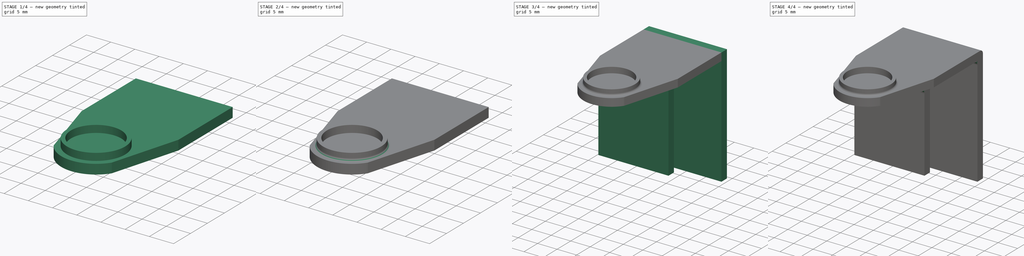
[diagram: build sequence overview — one tinted view per stage of 4, left to right]
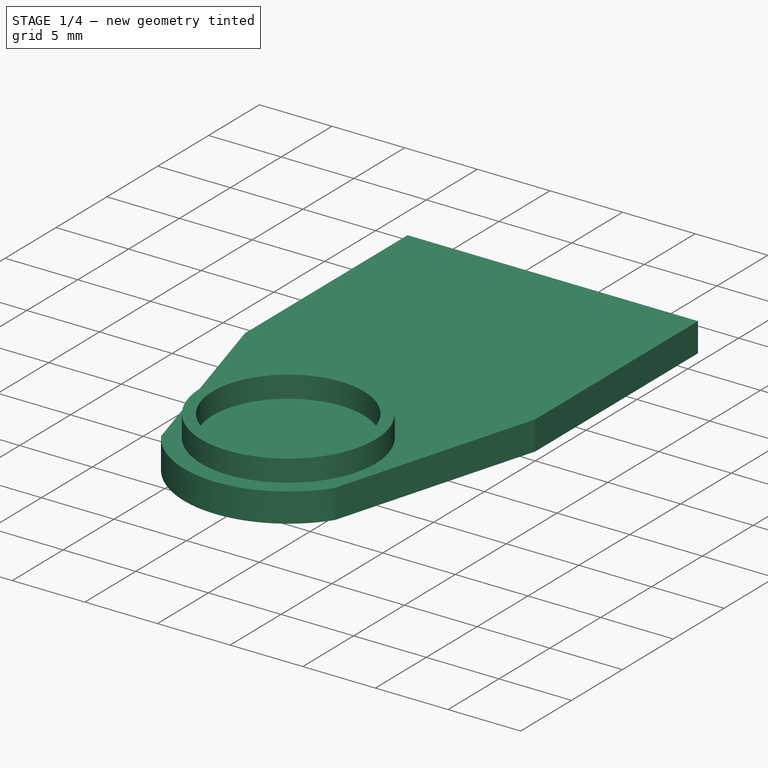
[diagram: stage 1 of 4 — iso view after this stage's code; geometry added in this stage tinted green]
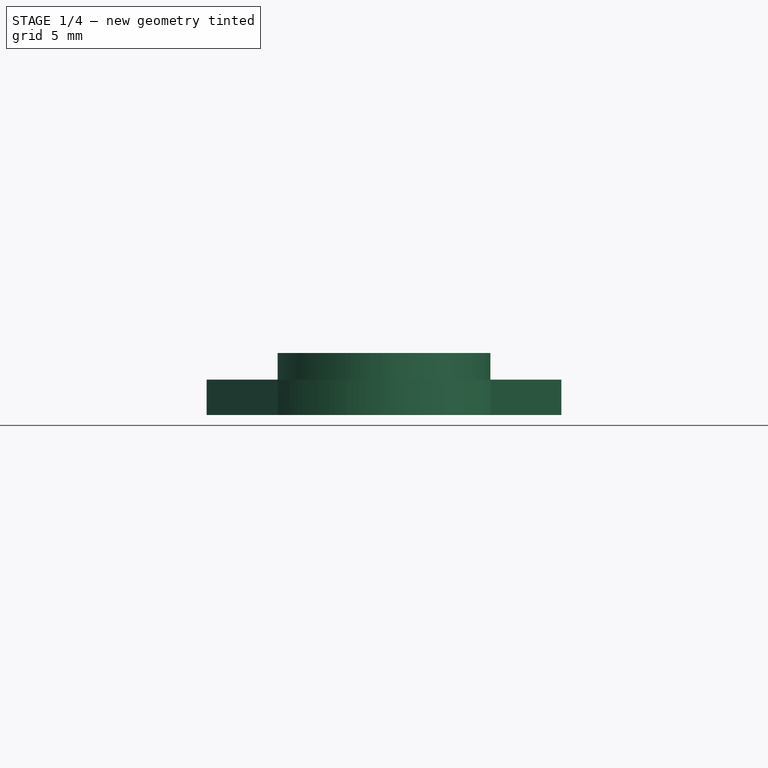
[diagram: stage 1 of 4 — front view after this stage's code; geometry added in this stage tinted green]
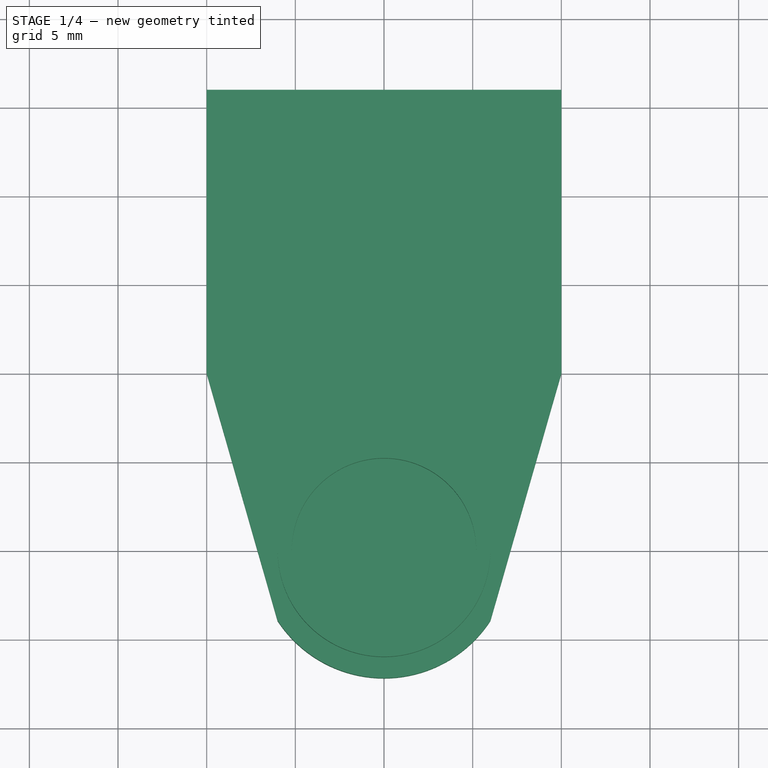
[diagram: stage 1 of 4 — top view after this stage's code; geometry added in this stage tinted green]
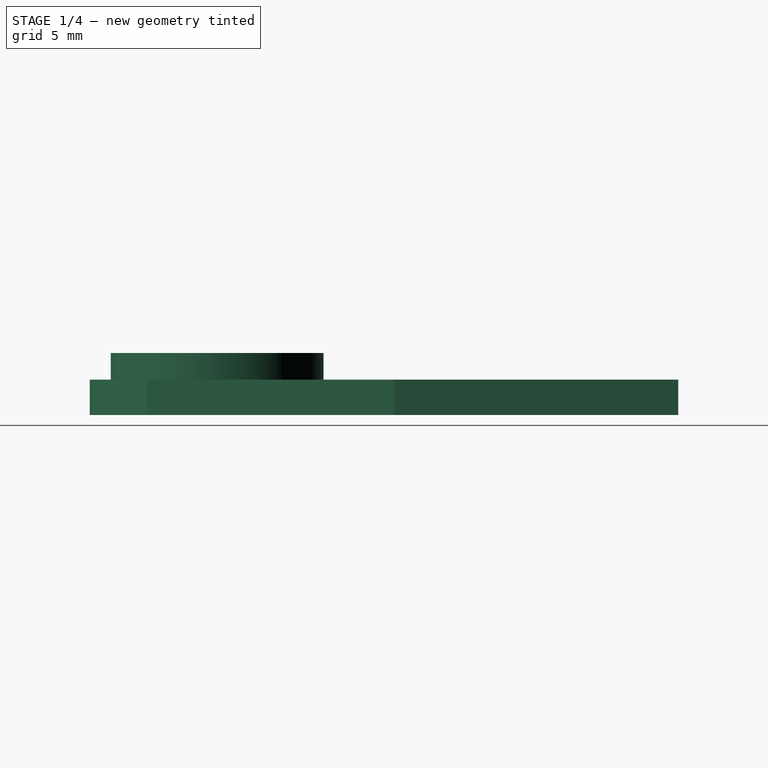
[diagram: stage 1 of 4 — right view after this stage's code; geometry added in this stage tinted green]
FCSTD DOCUMENT  (FreeCAD 0.18RUnknown)
Label: soporte_imanes_pizarra
License: All rights reserved
LicenseURL: http://en.wikipedia.org/wiki/All_rights_reserved
objects: Part::Fillet×3, Part::MultiFuse×3, Sketcher::SketchObject×2, PartDesign::Pad×2, Part::Box×2, PartDesign::Plane×1, PartDesign::Body×1
note: 16 computed .brp shape members not serialized (recipe doc carries the construction recipe); baked Part::Feature solids carry a one-line shape summary decoded from their .brp

FEATURE [Sketcher::SketchObject] Sketch
  MapMode = 5
  Support = -> [XY_Plane]
  sketch-geometry (6):
    g0: LineSegment StartX=-10 StartY=0 StartZ=0 EndX=-6 EndY=-13.9497 EndZ=0
    g1: LineSegment StartX=10 StartY=0 StartZ=0 EndX=6 EndY=-13.9497 EndZ=0
    g2: ArcOfCircle CenterX=6e-16 CenterY=-10 CenterZ=0 NormalX=0 NormalY=0 NormalZ=1 AngleXU=0 Radius=7.1833 StartAngle=3.72376 EndAngle=5.70101
    g3: LineSegment StartX=10 StartY=0 StartZ=0 EndX=10 EndY=16 EndZ=0
    g4: LineSegment StartX=10 StartY=16 StartZ=0 EndX=-10 EndY=16 EndZ=0
    g5: LineSegment StartX=-10 StartY=16 StartZ=0 EndX=-10 EndY=0 EndZ=0
  constraints (17):
    c: Symmetric(g0,g1,g-2)
    c: Equal(g0,g1)
    c: Coincident(g2,g0)
    c: DistanceX(g0,g0) = 4
    c: Coincident(g2,g1)
    c: Symmetric(g0,g1,g-2)
    c: Coincident(g3,g4)
    c: Coincident(g4,g5)
    c: Vertical(g3)
    c: DistanceX(g4,g4) = 20
    c: Coincident(g0,g5)
    c: Coincident(g1,g3)
    c: PointOnObject(g0,g-1)
    c: DistanceY(g3,g3) = 16
    c: Symmetric(g4,g3,g-2)
    c: Distance(g-1,g2) = 10
    c: Angle(g0,g5) = 2.86234
FEATURE [PartDesign::Pad] Pad
  Length = 2
  Length2 = 100
  Profile = -> Sketch
  Type = 0
FEATURE [PartDesign::Plane] DatumPlane
  Length = 24
  MapMode = 5
  Placement = pos=(0,0,2) rot=(0,0,1;0rad)
  ResizeMode = 0
  Support = -> [Pad]
  Width = 24
FEATURE [Sketcher::SketchObject] Sketch001
  MapMode = 5
  Placement = pos=(0,0,2) rot=(0,0,1;0rad)
  Support = -> [DatumPlane]
  sketch-geometry (2):
    g0: Circle CenterX=0 CenterY=-10 CenterZ=0 NormalX=0 NormalY=0 NormalZ=1 AngleXU=0 Radius=6
    g1: Circle CenterX=0 CenterY=-10 CenterZ=0 NormalX=0 NormalY=0 NormalZ=1 AngleXU=0 Radius=5.2
  constraints (5):
    c: PointOnObject(g0,g-2)
    c: Radius(g0) = 6
    c: Distance(g-1,g0) = 10
    c: Coincident(g1,g0)
    c: Radius(g1) = 5.2
FEATURE [PartDesign::Pad] Pad001
  BaseFeature = -> Pad
  Length = 1.5
  Length2 = 100
  Profile = -> Sketch001
  Type = 0
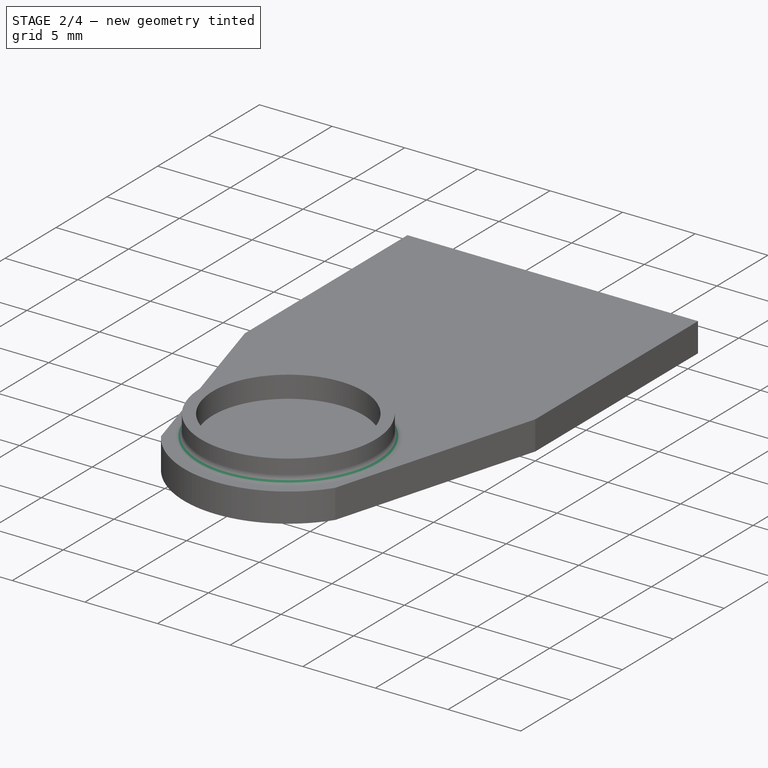
[diagram: stage 2 of 4 — iso view after this stage's code; geometry added in this stage tinted green]
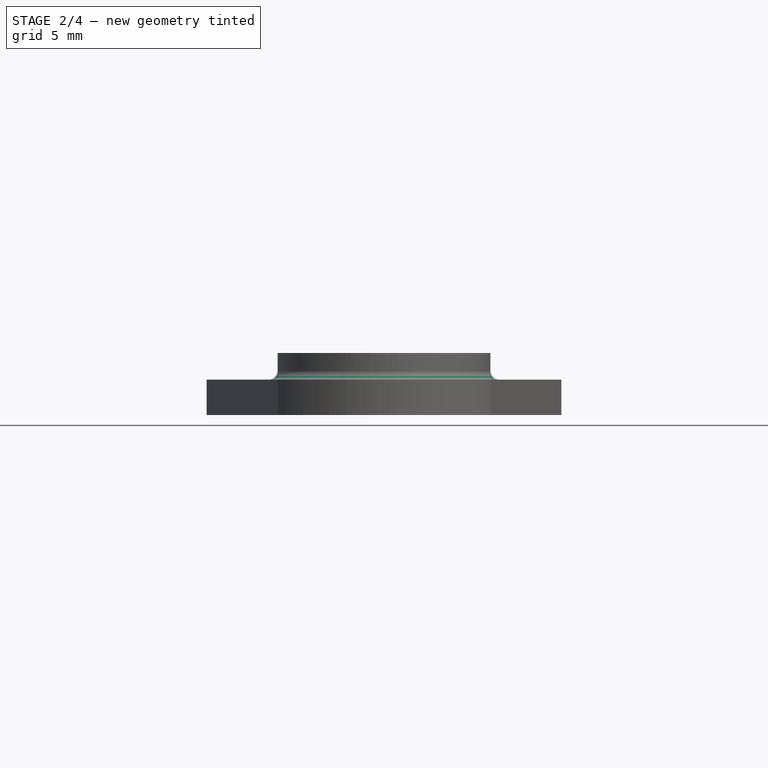
[diagram: stage 2 of 4 — front view after this stage's code; geometry added in this stage tinted green]
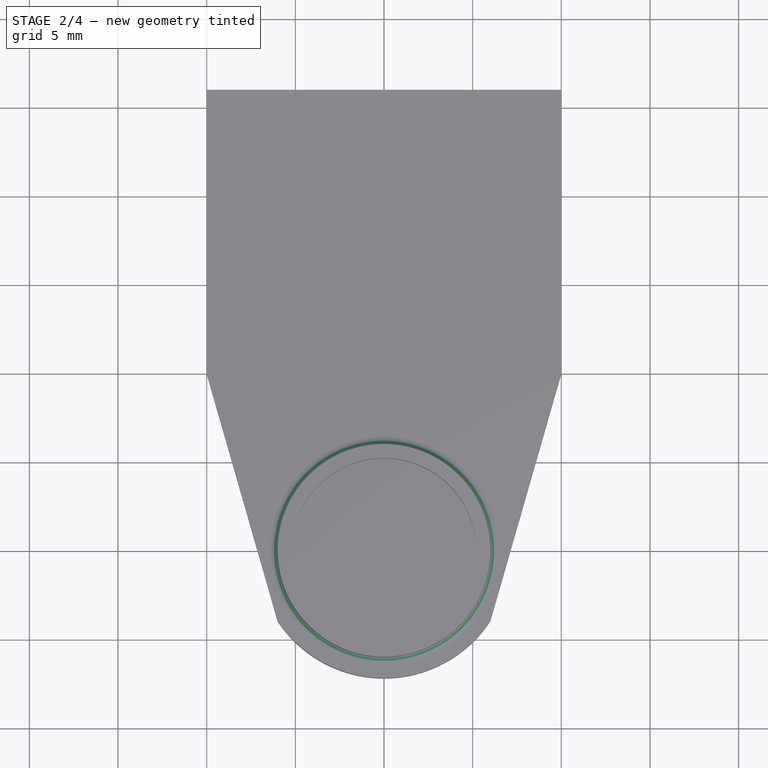
[diagram: stage 2 of 4 — top view after this stage's code; geometry added in this stage tinted green]
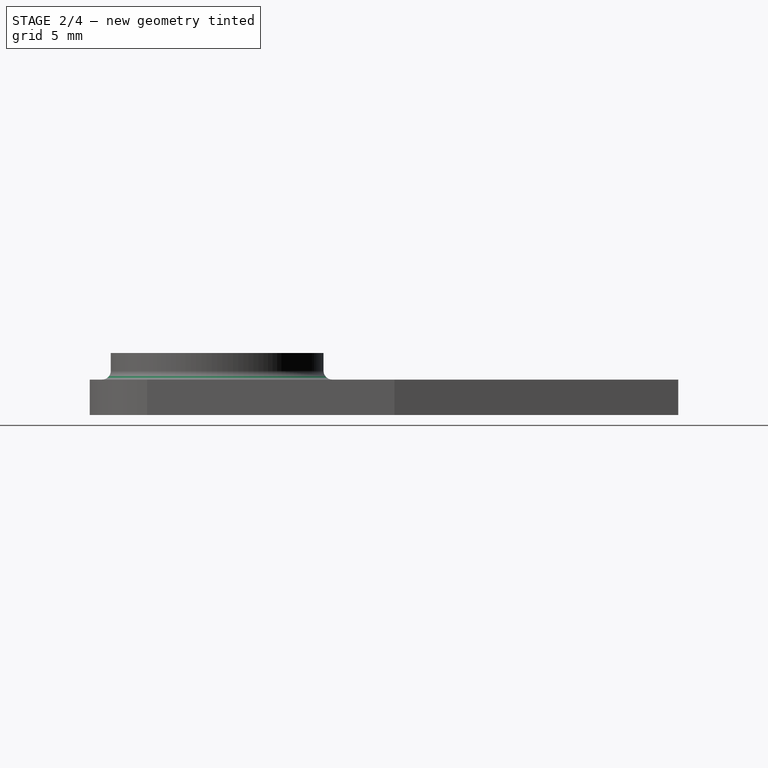
[diagram: stage 2 of 4 — right view after this stage's code; geometry added in this stage tinted green]
FEATURE [Part::Fillet] Fillet
  Base = -> Pad001
  Edges = 1 edges r=0.5: [Edge17]
FEATURE [Part::Fillet] Fillet001
  Base = -> Pad001
  Edges = 1 edges r=0.5: [Edge21]
FEATURE [Part::MultiFuse] Fusion
  Shapes = -> [Fillet,Fillet001]
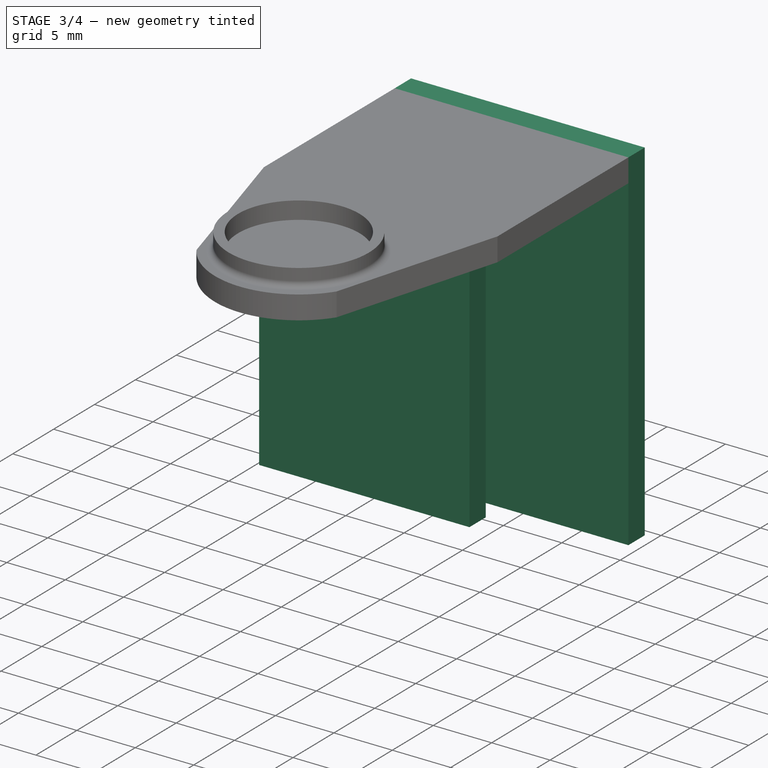
[diagram: stage 3 of 4 — iso view after this stage's code; geometry added in this stage tinted green]
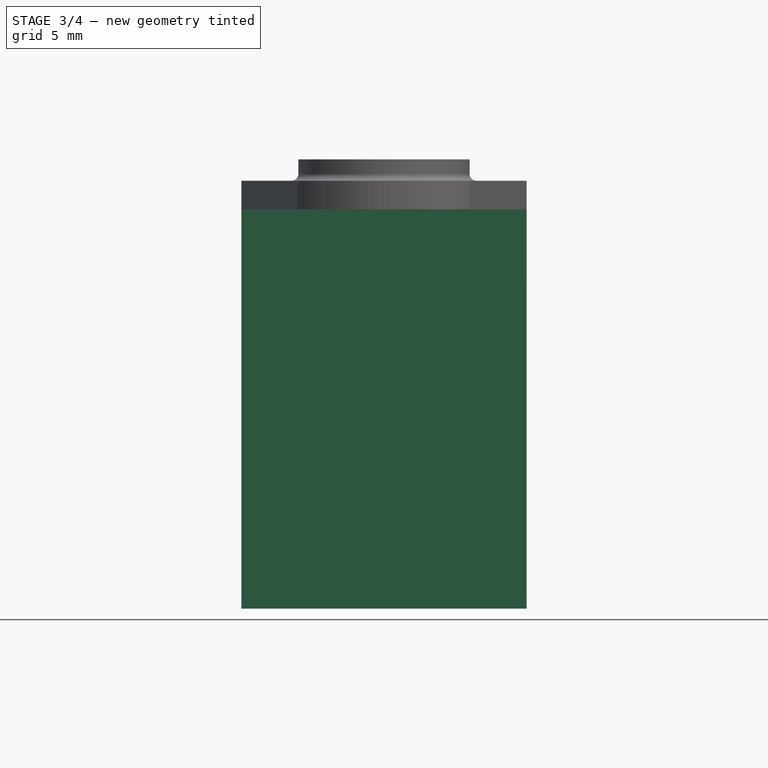
[diagram: stage 3 of 4 — front view after this stage's code; geometry added in this stage tinted green]
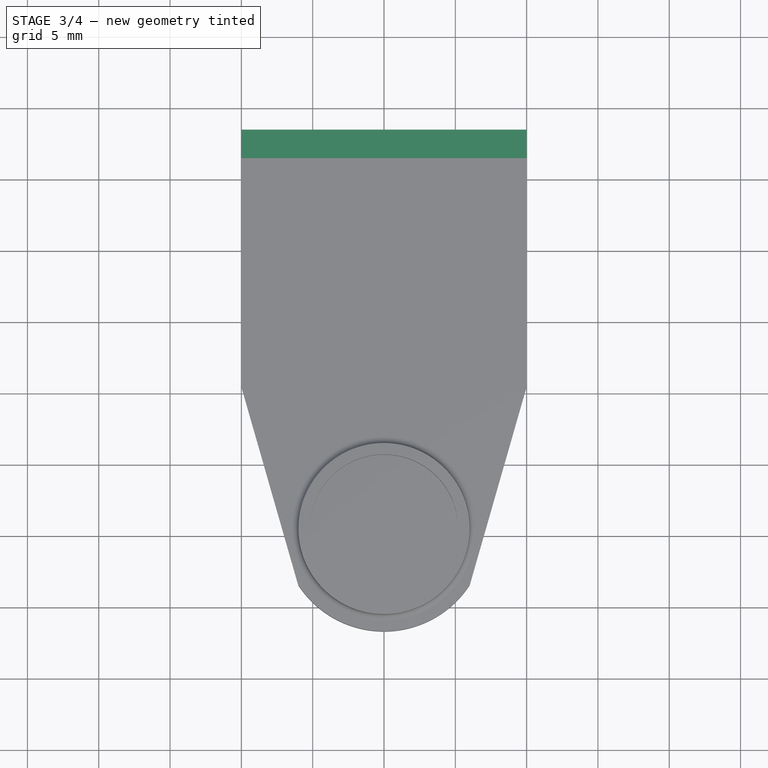
[diagram: stage 3 of 4 — top view after this stage's code; geometry added in this stage tinted green]
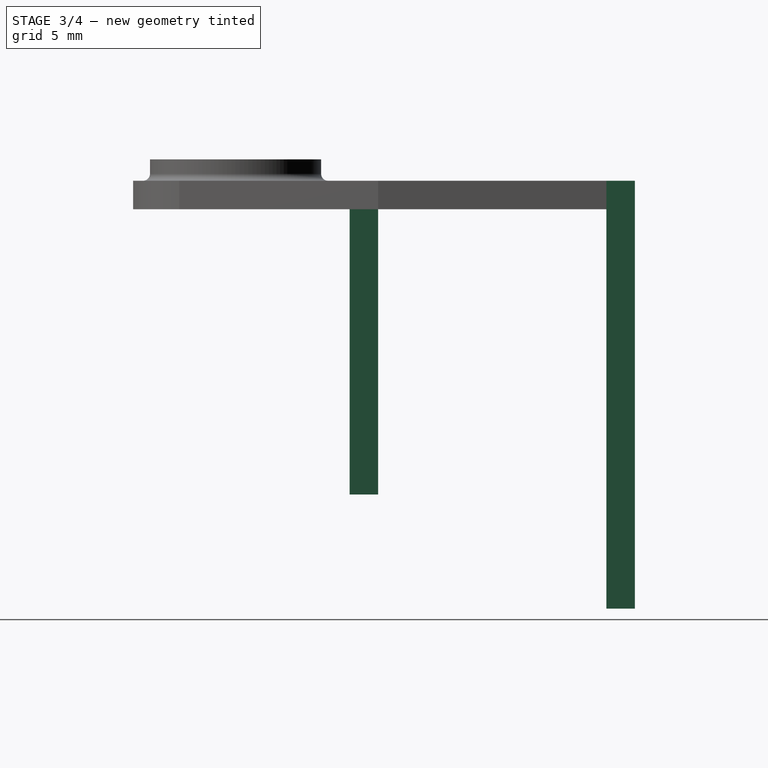
[diagram: stage 3 of 4 — right view after this stage's code; geometry added in this stage tinted green]
FEATURE [PartDesign::Body] Body
  Group = -> [Sketch,Pad,DatumPlane,Sketch001,Pad001]
  Origin = -> Origin
  Tip = -> Pad001
FEATURE [Part::Box] Box  label="Cubo"
  AttacherType = Attacher::AttachEngine3D
  Height = 30
  Length = 20
  Placement = pos=(-10,16,-28) rot=(0,0,1;0rad)
  Width = 2
FEATURE [Part::Box] Box001  label="Cubo001"
  AttacherType = Attacher::AttachEngine3D
  Height = 20
  Length = 18
  Placement = pos=(-9,-2,-20) rot=(0,0,1;0rad)
  Width = 2
FEATURE [Part::MultiFuse] Fusion001
  Shapes = -> [Fusion,Box]
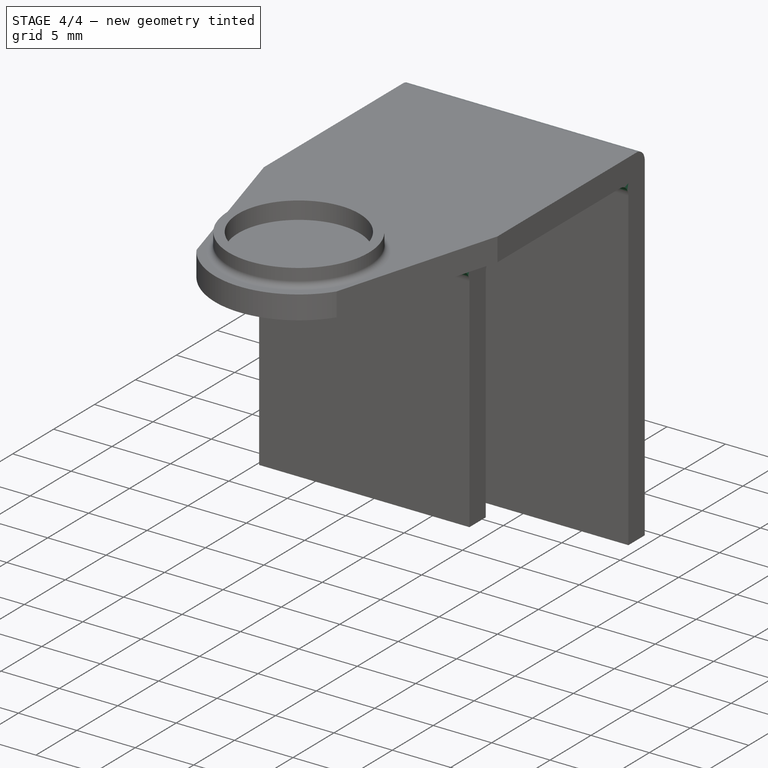
[diagram: stage 4 of 4 — iso view after this stage's code; geometry added in this stage tinted green]
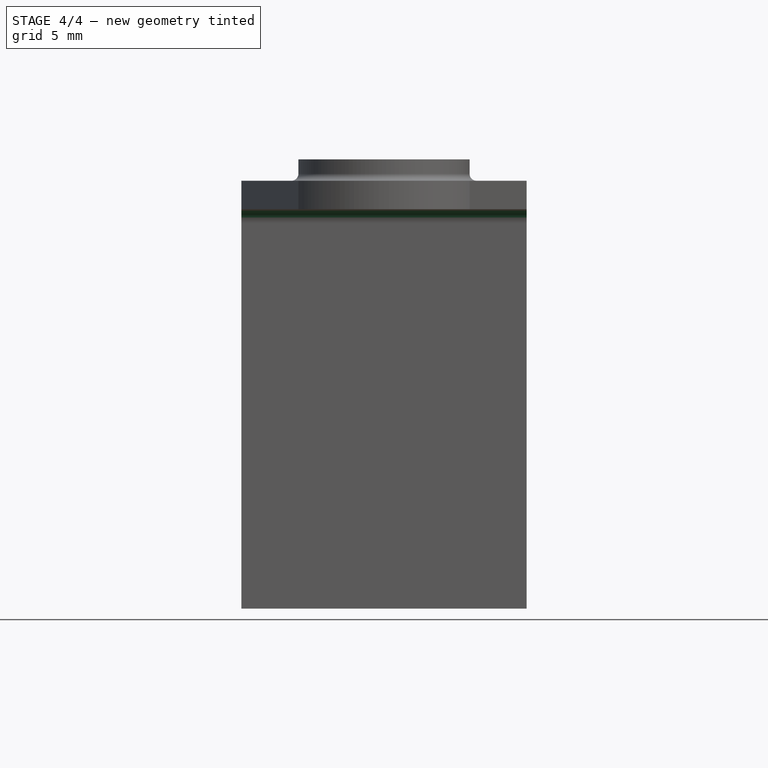
[diagram: stage 4 of 4 — front view after this stage's code; geometry added in this stage tinted green]
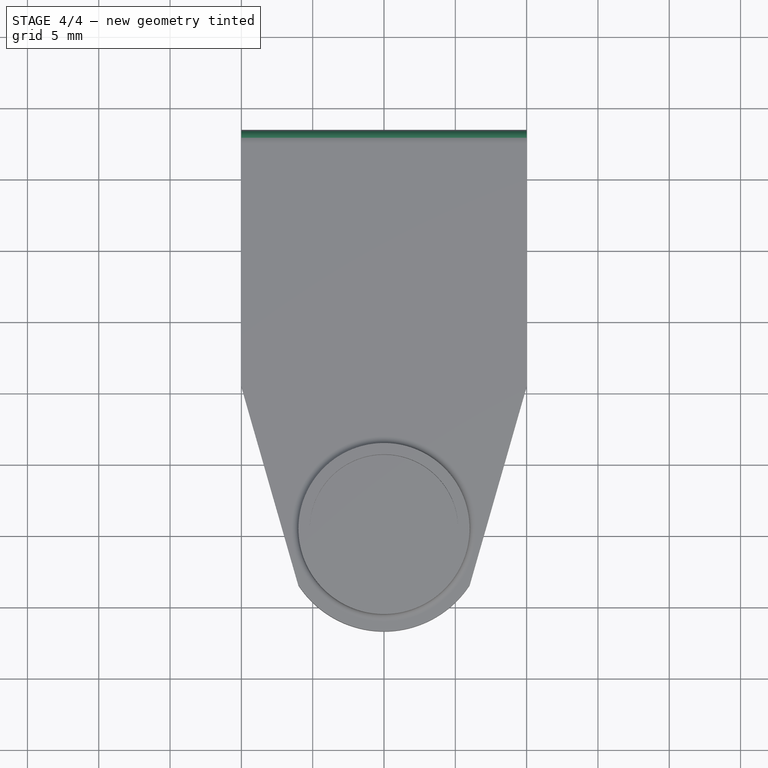
[diagram: stage 4 of 4 — top view after this stage's code; geometry added in this stage tinted green]
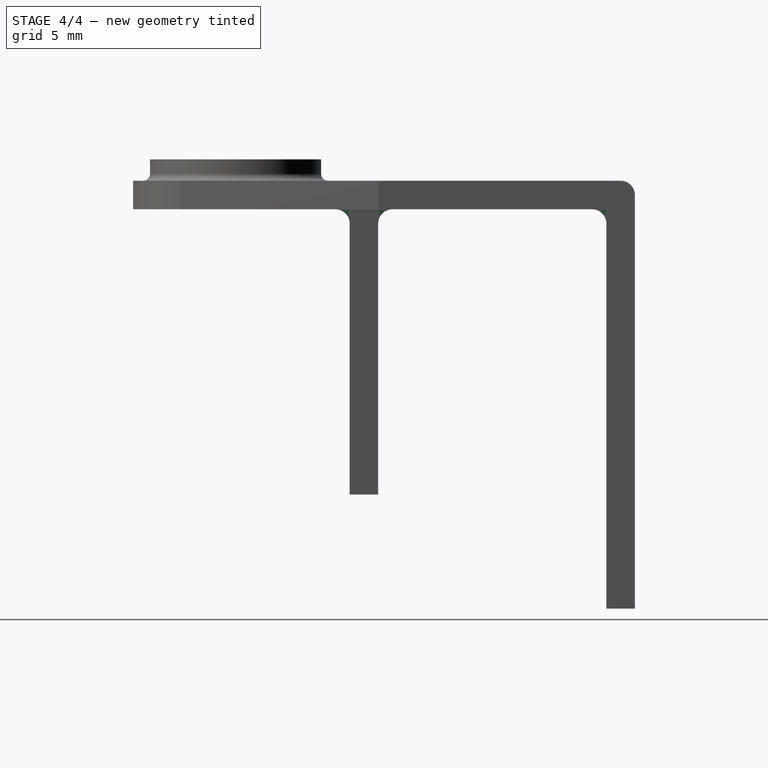
[diagram: stage 4 of 4 — right view after this stage's code; geometry added in this stage tinted green]
FEATURE [Part::MultiFuse] Fusion002
  Shapes = -> [Fusion001,Box001]
FEATURE [Part::Fillet] Fillet002
  Base = -> Fusion002
  Edges = 4 edges r=1: [Edge7,Edge12,Edge24,Edge26]
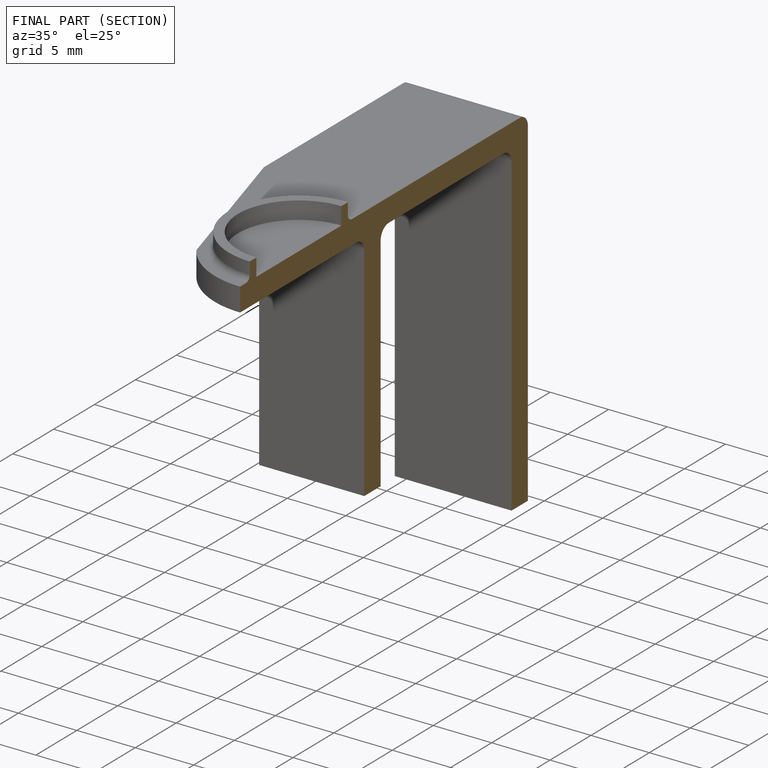
[diagram: finished part — half-section view (interior)]
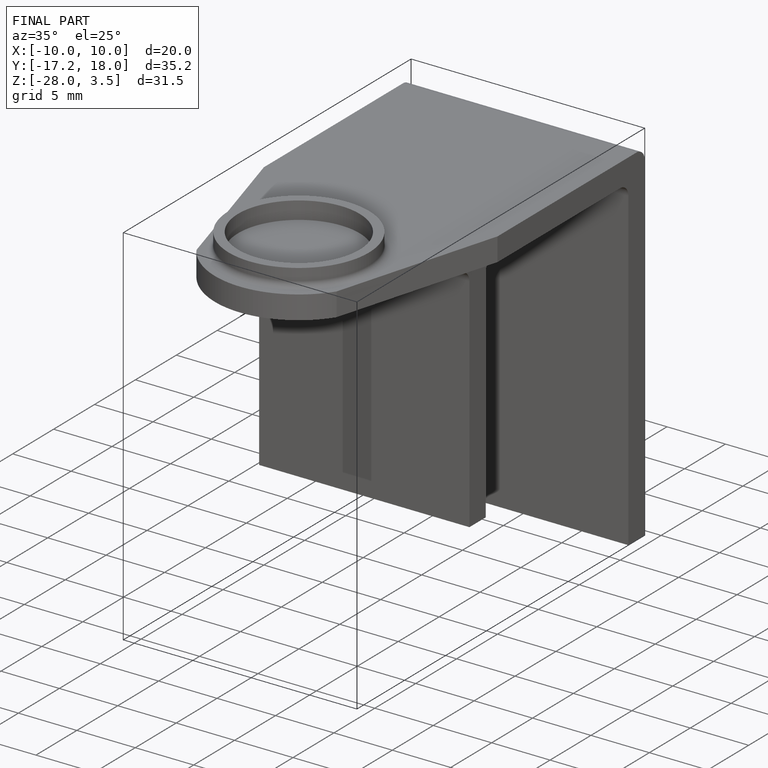
[diagram: finished part — iso view with bounding-box wireframe]
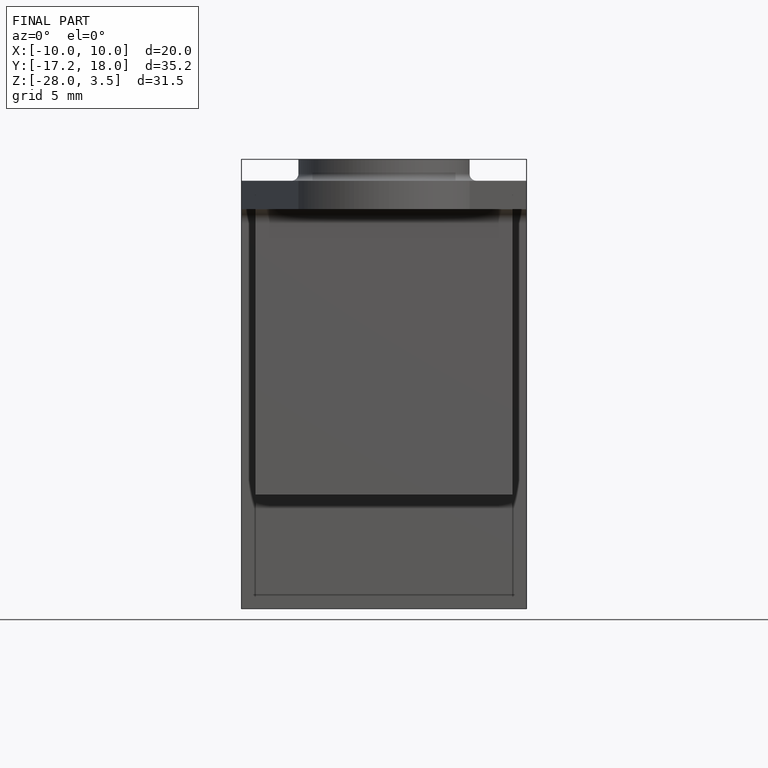
[diagram: finished part — front view with bounding-box wireframe]
